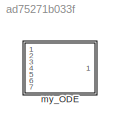
MODEL slx_ad75271b033f
KIND model
CONFIG AbsTol = auto
CONFIG EnableMultiTasking = off
CONFIG FixedStep = auto
CONFIG MaxStep = auto
CONFIG MinStep = auto
CONFIG RelTol = 1e-3
CONFIG SampleTimeConstraint = Unconstrained
CONFIG SolverName = VariableStepAuto
CONFIG StartTime = 0.0
CONFIG StopTime = 10.0
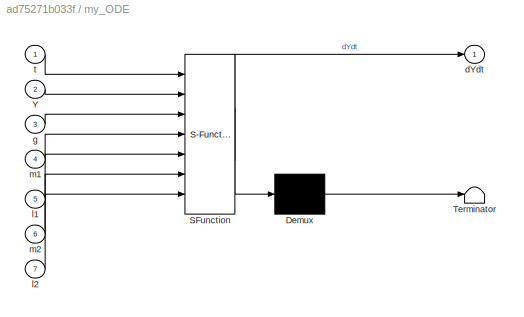
BLOCK [SubSystem] my_ODE
  ErrorFcn = Stateflow.Translate.translate
  PermitHierarchicalResolution = ExplicitOnly
  Ports = [7, 1]
  RequestExecContextInheritance = off
  SFBlockType = MATLAB Function
  TreatAsAtomicUnit = on
BLOCK [Demux] my_ODE/ Demux 
  Outputs = 1
  Ports = [1, 1]
BLOCK [S-Function] my_ODE/ SFunction 
  EnableBusSupport = off
  FunctionName = sf_sfun
  PortCounts = [7 2]
  Ports = [7, 2]
  SFcnIsStateOwnerBlock = off
  SFunctionDeploymentMode = off
  Tag = Stateflow S-Function 2
BLOCK [Terminator] my_ODE/ Terminator 
BLOCK [Inport] my_ODE/Y
  Port = 2
BLOCK [Outport] my_ODE/dYdt
BLOCK [Inport] my_ODE/g
  Port = 3
BLOCK [Inport] my_ODE/l1
  Port = 5
BLOCK [Inport] my_ODE/l2
  Port = 7
BLOCK [Inport] my_ODE/m1
  Port = 4
BLOCK [Inport] my_ODE/m2
  Port = 6
BLOCK [Inport] my_ODE/t
CHART my_ODE states=1 transitions=1
  STATE_LABEL 'eML_blk_kernel()'
  STATE_LABEL 'SCRIPT:\nfunction dYdt = my_ODE(t,Y,g,m1,l1,m2,l2)\n%#codegen\n\n%    This function was generated by the Symbolic Math Toolbox version 8.7.\n%    10-May-2021 19:37:08\n\nt2 = Y(1);\nt3 = Y(2);\nt4 = Y(3);\nt5 = Y(4);\nt6 = sin(t2);\nt7 = sin(t4);\nt8 = t3.^2;\nt9 = t5.^2;\nt10 = -t4;\nt11 = t2+t10;\nt12 = cos(t11);\nt13 = sin(t11);\nt14 = t12.^2;\ndYdt = [t3;-(g.*m1.*t6+g.*m2.*t6-g.*m2.*t7.*t12+l2.*m2.*t9.*t13+l1.*m2...<+179ch>'
CHART  states=0 transitions=0
